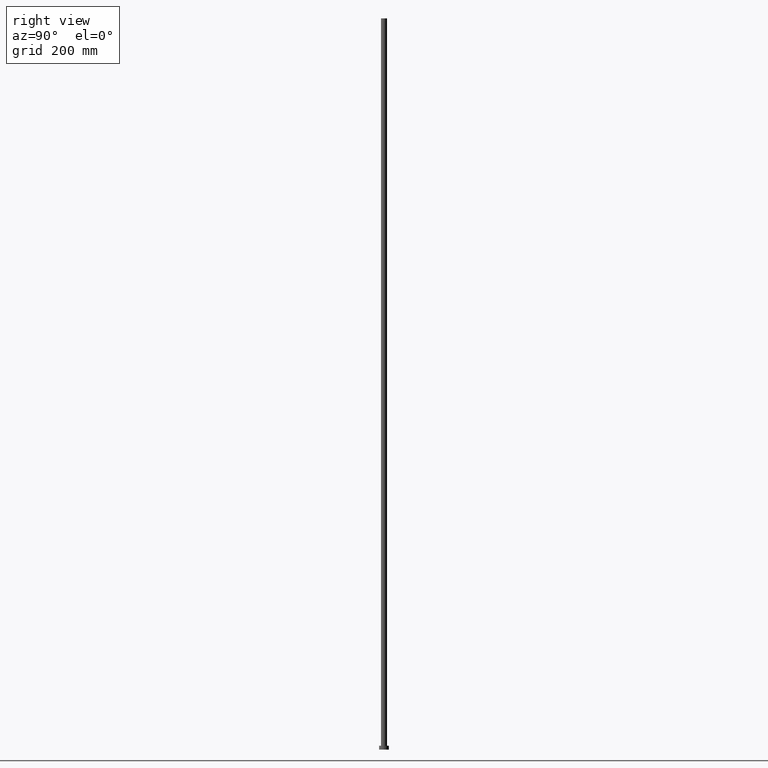
[diagram: clean part render]
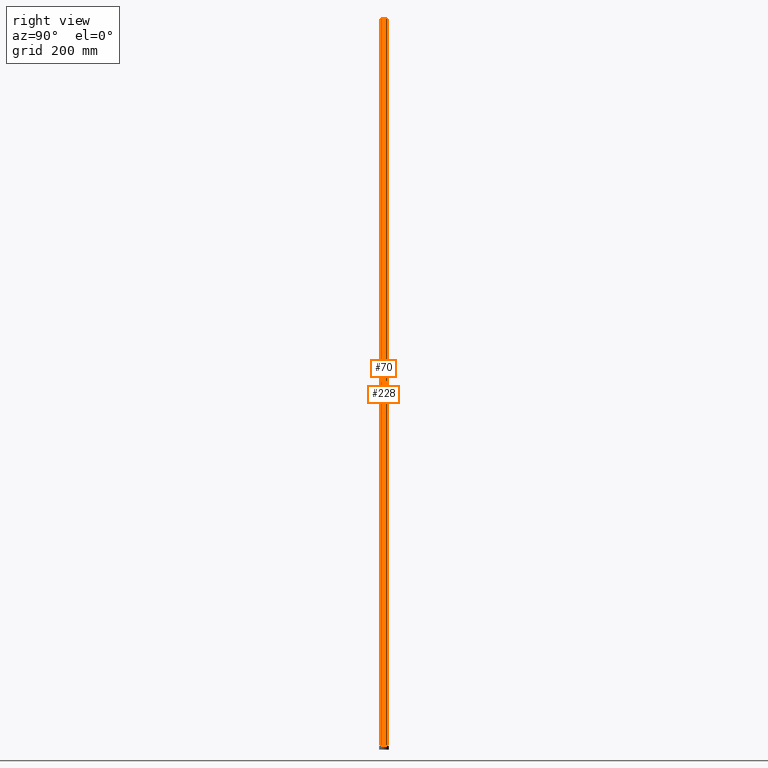
[diagram: same view with one multi-face feature highlighted, each face labeled with its STEP entity id]
A machine part, right view. The highlighted faces form ONE feature: a constant-radius fillet chain: 2 tangent blend faces with common blend radius 5 mm. The faces share edges in the B-rep.
Their STEP definitions:
[1] entity #70 (Cylinder):
#2 = DIRECTION ( 'NONE',  ( 1.000000000000000000, 0.000000000000000000, 0.000000000000000000 ) ) ;
#12 = ORIENTED_EDGE ( 'NONE', *, *, #223, .F. ) ;
#13 = AXIS2_PLACEMENT_3D ( 'NONE', #217, #254, #2 ) ;
#21 = DIRECTION ( 'NONE',  ( -0.000000000000000000, -0.000000000000000000, -1.000000000000000000 ) ) ;
#24 = LINE ( 'NONE', #101, #191 ) ;
#25 = CYLINDRICAL_SURFACE ( 'NONE', #199, 5.000000000000000888 ) ;
#35 = VERTEX_POINT ( 'NONE', #234 ) ;
#39 = CARTESIAN_POINT ( 'NONE',  ( -5.000000000000000888, 0.000000000000000000, 1200.000000000000000 ) ) ;
#43 = CARTESIAN_POINT ( 'NONE',  ( 5.000000000000000888, 6.123233995736767268E-16, 6.500000000000000000 ) ) ;
#45 = CARTESIAN_POINT ( 'NONE',  ( -5.000000000000000888, 0.000000000000000000, 1200.000000000000000 ) ) ;
#52 = VERTEX_POINT ( 'NONE', #39 ) ;
#53 = VECTOR ( 'NONE', #237, 1000.000000000000000 ) ;
#66 = DIRECTION ( 'NONE',  ( -0.000000000000000000, -0.000000000000000000, -1.000000000000000000 ) ) ;
#70 = ADVANCED_FACE ( 'NONE', ( #194 ), #25, .T. ) ;
#74 = EDGE_CURVE ( 'NONE', #116, #113, #126, .T. ) ;
#76 = DIRECTION ( 'NONE',  ( 0.000000000000000000, 0.000000000000000000, 1.000000000000000000 ) ) ;
#101 = CARTESIAN_POINT ( 'NONE',  ( 5.000000000000000888, 6.123233995736767268E-16, 1200.000000000000000 ) ) ;
#113 = VERTEX_POINT ( 'NONE', #43 ) ;
#116 = VERTEX_POINT ( 'NONE', #152 ) ;
#118 = CIRCLE ( 'NONE', #224, 5.000000000000000888 ) ;
#123 = LINE ( 'NONE', #45, #53 ) ;
#126 = CIRCLE ( 'NONE', #13, 5.000000000000000888 ) ;
#138 = DIRECTION ( 'NONE',  ( -1.000000000000000000, 0.000000000000000000, 0.000000000000000000 ) ) ;
#143 = EDGE_CURVE ( 'NONE', #52, #35, #118, .T. ) ;
#144 = ORIENTED_EDGE ( 'NONE', *, *, #74, .T. ) ;
#146 = ORIENTED_EDGE ( 'NONE', *, *, #188, .T. ) ;
#152 = CARTESIAN_POINT ( 'NONE',  ( -5.000000000000000888, 0.000000000000000000, 6.500000000000000000 ) ) ;
#154 = CARTESIAN_POINT ( 'NONE',  ( 0.000000000000000000, 0.000000000000000000, 1200.000000000000000 ) ) ;
#166 = ORIENTED_EDGE ( 'NONE', *, *, #143, .F. ) ;
#174 = CARTESIAN_POINT ( 'NONE',  ( 0.000000000000000000, 0.000000000000000000, 1200.000000000000000 ) ) ;
#188 = EDGE_CURVE ( 'NONE', #52, #116, #123, .T. ) ;
#191 = VECTOR ( 'NONE', #66, 1000.000000000000000 ) ;
#194 = FACE_OUTER_BOUND ( 'NONE', #233, .T. ) ;
#199 = AXIS2_PLACEMENT_3D ( 'NONE', #174, #21, #138 ) ;
#217 = CARTESIAN_POINT ( 'NONE',  ( 0.000000000000000000, 0.000000000000000000, 6.500000000000000000 ) ) ;
#219 = DIRECTION ( 'NONE',  ( 1.000000000000000000, 0.000000000000000000, 0.000000000000000000 ) ) ;
#223 = EDGE_CURVE ( 'NONE', #35, #113, #24, .T. ) ;
#224 = AXIS2_PLACEMENT_3D ( 'NONE', #154, #76, #219 ) ;
#233 = EDGE_LOOP ( 'NONE', ( #12, #166, #146, #144 ) ) ;
#234 = CARTESIAN_POINT ( 'NONE',  ( 5.000000000000000888, 6.123233995736767268E-16, 1200.000000000000000 ) ) ;
#237 = DIRECTION ( 'NONE',  ( -0.000000000000000000, -0.000000000000000000, -1.000000000000000000 ) ) ;
#254 = DIRECTION ( 'NONE',  ( 0.000000000000000000, 0.000000000000000000, 1.000000000000000000 ) ) ;
[2] entity #228 (Cylinder):
#1 = DIRECTION ( 'NONE',  ( 0.000000000000000000, 0.000000000000000000, 1.000000000000000000 ) ) ;
#3 = CARTESIAN_POINT ( 'NONE',  ( 0.000000000000000000, 0.000000000000000000, 1200.000000000000000 ) ) ;
#5 = AXIS2_PLACEMENT_3D ( 'NONE', #235, #1, #142 ) ;
#23 = CARTESIAN_POINT ( 'NONE',  ( 0.000000000000000000, 0.000000000000000000, 1200.000000000000000 ) ) ;
#24 = LINE ( 'NONE', #101, #191 ) ;
#35 = VERTEX_POINT ( 'NONE', #234 ) ;
#39 = CARTESIAN_POINT ( 'NONE',  ( -5.000000000000000888, 0.000000000000000000, 1200.000000000000000 ) ) ;
#43 = CARTESIAN_POINT ( 'NONE',  ( 5.000000000000000888, 6.123233995736767268E-16, 6.500000000000000000 ) ) ;
#45 = CARTESIAN_POINT ( 'NONE',  ( -5.000000000000000888, 0.000000000000000000, 1200.000000000000000 ) ) ;
#49 = EDGE_CURVE ( 'NONE', #113, #116, #78, .T. ) ;
#52 = VERTEX_POINT ( 'NONE', #39 ) ;
#53 = VECTOR ( 'NONE', #237, 1000.000000000000000 ) ;
#58 = ORIENTED_EDGE ( 'NONE', *, *, #49, .T. ) ;
#66 = DIRECTION ( 'NONE',  ( -0.000000000000000000, -0.000000000000000000, -1.000000000000000000 ) ) ;
#78 = CIRCLE ( 'NONE', #5, 5.000000000000000888 ) ;
#92 = ORIENTED_EDGE ( 'NONE', *, *, #198, .F. ) ;
#94 = ORIENTED_EDGE ( 'NONE', *, *, #223, .T. ) ;
#99 = EDGE_LOOP ( 'NONE', ( #92, #94, #58, #184 ) ) ;
#101 = CARTESIAN_POINT ( 'NONE',  ( 5.000000000000000888, 6.123233995736767268E-16, 1200.000000000000000 ) ) ;
#106 = CYLINDRICAL_SURFACE ( 'NONE', #244, 5.000000000000000888 ) ;
#113 = VERTEX_POINT ( 'NONE', #43 ) ;
#116 = VERTEX_POINT ( 'NONE', #152 ) ;
#123 = LINE ( 'NONE', #45, #53 ) ;
#124 = FACE_OUTER_BOUND ( 'NONE', #99, .T. ) ;
#136 = DIRECTION ( 'NONE',  ( -1.000000000000000000, 0.000000000000000000, 0.000000000000000000 ) ) ;
#142 = DIRECTION ( 'NONE',  ( 1.000000000000000000, 0.000000000000000000, 0.000000000000000000 ) ) ;
#152 = CARTESIAN_POINT ( 'NONE',  ( -5.000000000000000888, 0.000000000000000000, 6.500000000000000000 ) ) ;
#153 = DIRECTION ( 'NONE',  ( 0.000000000000000000, 0.000000000000000000, 1.000000000000000000 ) ) ;
#157 = DIRECTION ( 'NONE',  ( -0.000000000000000000, -0.000000000000000000, -1.000000000000000000 ) ) ;
#184 = ORIENTED_EDGE ( 'NONE', *, *, #188, .F. ) ;
#188 = EDGE_CURVE ( 'NONE', #52, #116, #123, .T. ) ;
#191 = VECTOR ( 'NONE', #66, 1000.000000000000000 ) ;
#193 = DIRECTION ( 'NONE',  ( 1.000000000000000000, 0.000000000000000000, 0.000000000000000000 ) ) ;
#197 = AXIS2_PLACEMENT_3D ( 'NONE', #23, #153, #193 ) ;
#198 = EDGE_CURVE ( 'NONE', #35, #52, #222, .T. ) ;
#222 = CIRCLE ( 'NONE', #197, 5.000000000000000888 ) ;
#223 = EDGE_CURVE ( 'NONE', #35, #113, #24, .T. ) ;
#228 = ADVANCED_FACE ( 'NONE', ( #124 ), #106, .T. ) ;
#234 = CARTESIAN_POINT ( 'NONE',  ( 5.000000000000000888, 6.123233995736767268E-16, 1200.000000000000000 ) ) ;
#235 = CARTESIAN_POINT ( 'NONE',  ( 0.000000000000000000, 0.000000000000000000, 6.500000000000000000 ) ) ;
#237 = DIRECTION ( 'NONE',  ( -0.000000000000000000, -0.000000000000000000, -1.000000000000000000 ) ) ;
#244 = AXIS2_PLACEMENT_3D ( 'NONE', #3, #157, #136 ) ;